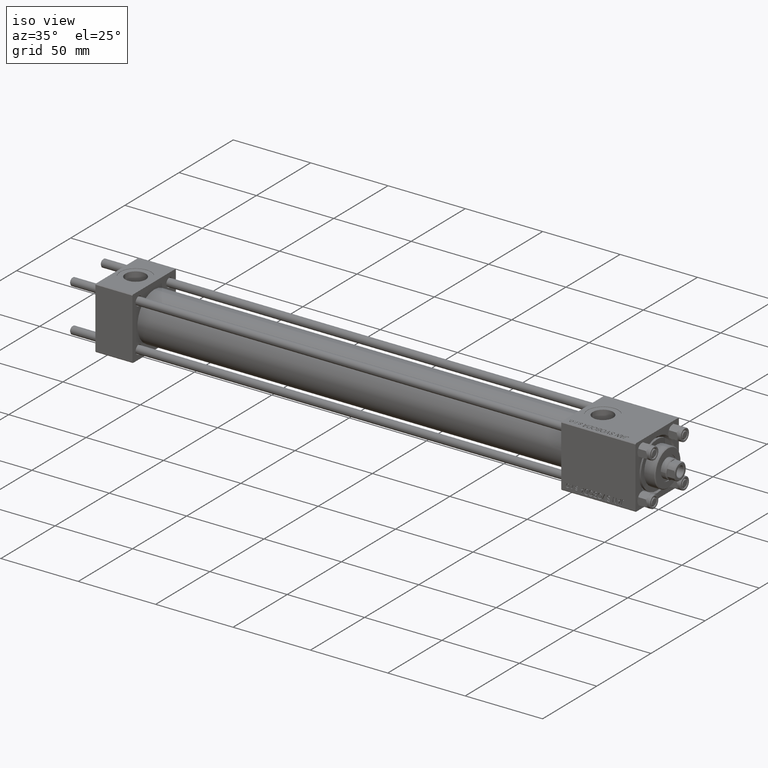
[diagram: clean part render]
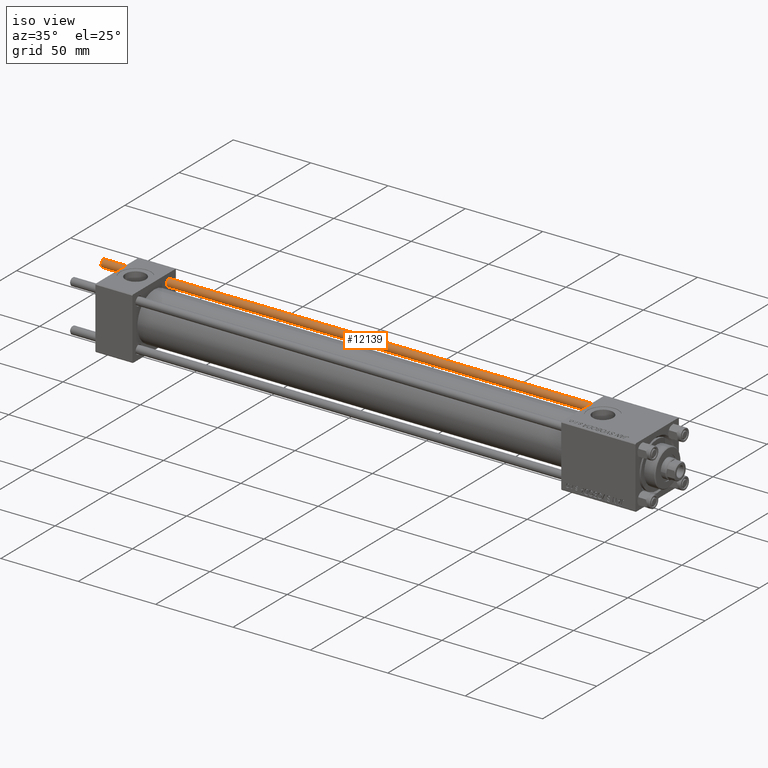
[diagram: same view with one face highlighted and labeled with its STEP entity id]
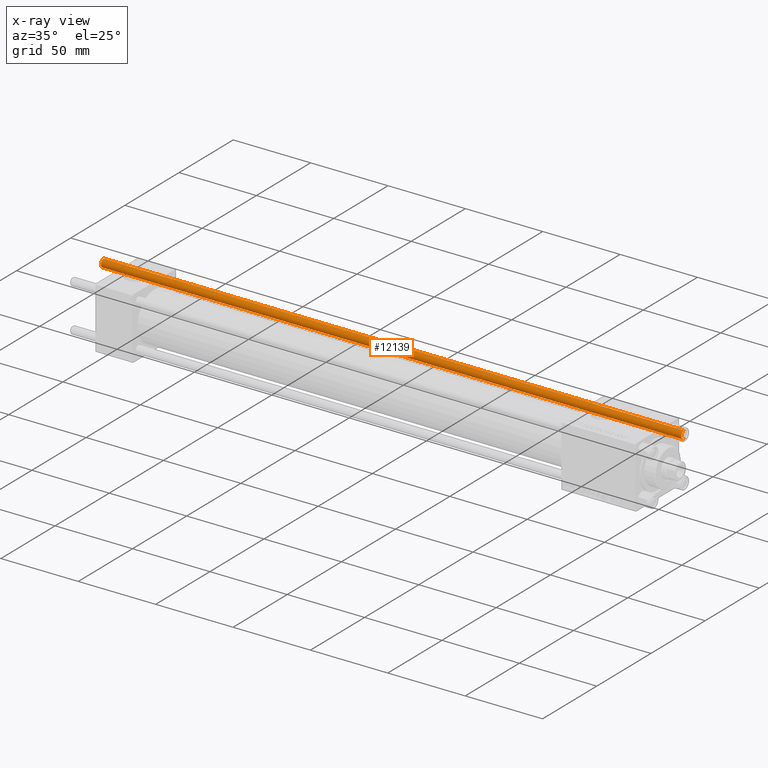
[diagram: x-ray of the same camera — body ghosted, the highlighted face saturated]
A machine part, iso view. The second image highlights one B-rep face of the part: STEP entity #12139.
The next image is the same camera in x-ray: the body ghosted, the highlighted face saturated — about 0% of this face is hidden behind the body in this view.
In plain terms, the highlighted cylindrical surface (edge-blend (fillet) strip) has radius 2.5 mm, axis along (-1, -0, -0).
Its self-contained STEP definition (entity closure, byte-faithful):
#500 = DIRECTION ( 'NONE',  ( -0.000000000000000000, -0.000000000000000000, 1.000000000000000000 ) ) ;
#709 = VERTEX_POINT ( 'NONE', #37376 ) ;
#1172 = DIRECTION ( 'NONE',  ( 0.000000000000000000, 0.000000000000000000, -1.000000000000000000 ) ) ;
#1254 = EDGE_CURVE ( 'NONE', #9641, #709, #47311, .T. ) ;
#1400 = DIRECTION ( 'NONE',  ( -1.000000000000000000, 0.000000000000000000, 0.000000000000000000 ) ) ;
#2215 = CARTESIAN_POINT ( 'NONE',  ( -2.500000000000000000, 0.000000000000000000, 376.0000000000000000 ) ) ;
#3331 = DIRECTION ( 'NONE',  ( -0.000000000000000000, -0.000000000000000000, -1.000000000000000000 ) ) ;
#3616 = VERTEX_POINT ( 'NONE', #47192 ) ;
#3639 = VECTOR ( 'NONE', #3331, 1000.000000000000000 ) ;
#8939 = FACE_OUTER_BOUND ( 'NONE', #49049, .T. ) ;
#9477 = AXIS2_PLACEMENT_3D ( 'NONE', #28344, #1172, #16777 ) ;
#9641 = VERTEX_POINT ( 'NONE', #41814 ) ;
#10611 = LINE ( 'NONE', #33545, #3639 ) ;
#12009 = CARTESIAN_POINT ( 'NONE',  ( -2.500000000000000000, 0.000000000000000000, 0.4999999999999449329 ) ) ;
#12139 = ADVANCED_FACE ( 'NONE', ( #8939 ), #39178, .T. ) ;
#14586 = VERTEX_POINT ( 'NONE', #12009 ) ;
#16115 = DIRECTION ( 'NONE',  ( 1.000000000000000000, 0.000000000000000000, 0.000000000000000000 ) ) ;
#16217 = ORIENTED_EDGE ( 'NONE', *, *, #36349, .T. ) ;
#16777 = DIRECTION ( 'NONE',  ( 1.000000000000000000, 0.000000000000000000, 0.000000000000000000 ) ) ;
#21361 = LINE ( 'NONE', #2215, #33312 ) ;
#25825 = EDGE_CURVE ( 'NONE', #9641, #3616, #10611, .T. ) ;
#27584 = DIRECTION ( 'NONE',  ( -0.000000000000000000, -0.000000000000000000, -1.000000000000000000 ) ) ;
#28344 = CARTESIAN_POINT ( 'NONE',  ( 0.000000000000000000, 0.000000000000000000, 375.5000000000000568 ) ) ;
#30540 = ORIENTED_EDGE ( 'NONE', *, *, #25825, .F. ) ;
#32189 = ORIENTED_EDGE ( 'NONE', *, *, #1254, .T. ) ;
#33312 = VECTOR ( 'NONE', #48040, 1000.000000000000000 ) ;
#33545 = CARTESIAN_POINT ( 'NONE',  ( 2.500000000000000000, 3.061616997868383141E-16, 376.0000000000000000 ) ) ;
#36349 = EDGE_CURVE ( 'NONE', #709, #14586, #21361, .T. ) ;
#37376 = CARTESIAN_POINT ( 'NONE',  ( -2.500000000000000000, 0.000000000000000000, 375.5000000000000568 ) ) ;
#38353 = CIRCLE ( 'NONE', #44798, 2.500000000000000000 ) ;
#39178 = CYLINDRICAL_SURFACE ( 'NONE', #49188, 2.500000000000000000 ) ;
#41814 = CARTESIAN_POINT ( 'NONE',  ( 2.500000000000000000, 3.061616997868383141E-16, 375.5000000000000568 ) ) ;
#43675 = CARTESIAN_POINT ( 'NONE',  ( 0.000000000000000000, 0.000000000000000000, 376.0000000000000000 ) ) ;
#44798 = AXIS2_PLACEMENT_3D ( 'NONE', #46573, #500, #16115 ) ;
#46412 = EDGE_CURVE ( 'NONE', #14586, #3616, #38353, .T. ) ;
#46573 = CARTESIAN_POINT ( 'NONE',  ( 0.000000000000000000, 0.000000000000000000, 0.4999999999999449329 ) ) ;
#47192 = CARTESIAN_POINT ( 'NONE',  ( 2.500000000000000000, 3.061616997868383141E-16, 0.4999999999999449329 ) ) ;
#47311 = CIRCLE ( 'NONE', #9477, 2.500000000000000000 ) ;
#47549 = ORIENTED_EDGE ( 'NONE', *, *, #46412, .T. ) ;
#48040 = DIRECTION ( 'NONE',  ( -0.000000000000000000, -0.000000000000000000, -1.000000000000000000 ) ) ;
#49049 = EDGE_LOOP ( 'NONE', ( #30540, #32189, #16217, #47549 ) ) ;
#49188 = AXIS2_PLACEMENT_3D ( 'NONE', #43675, #27584, #1400 ) ;